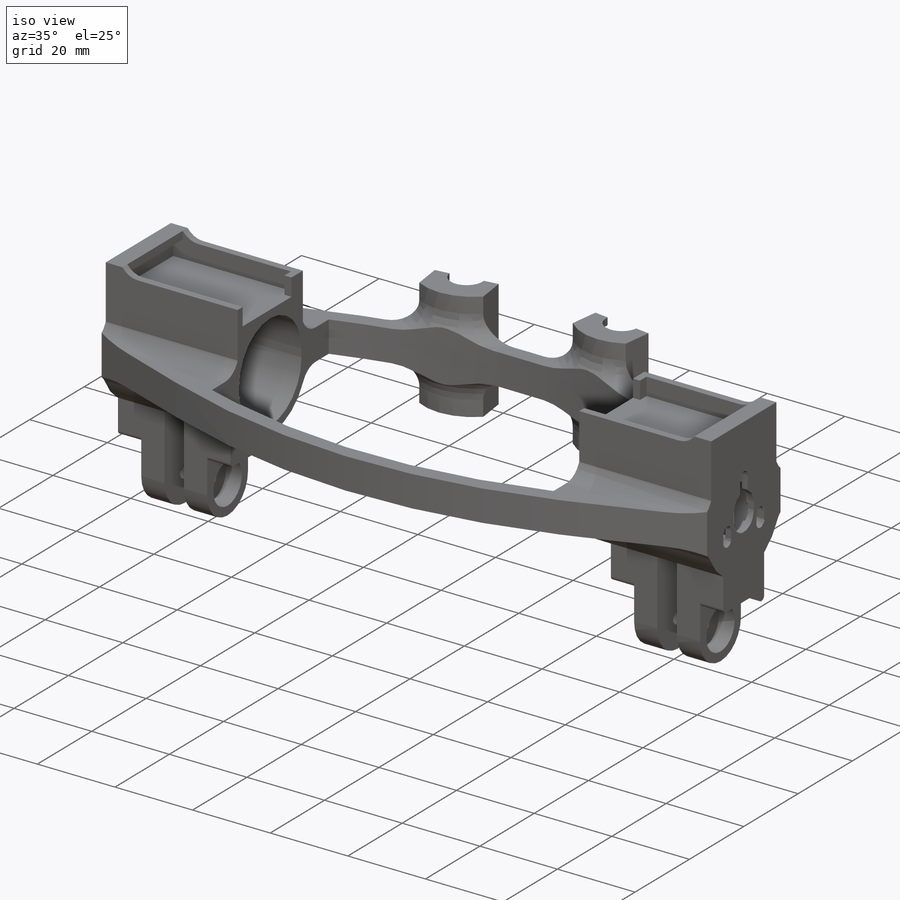
[diagram: iso view]
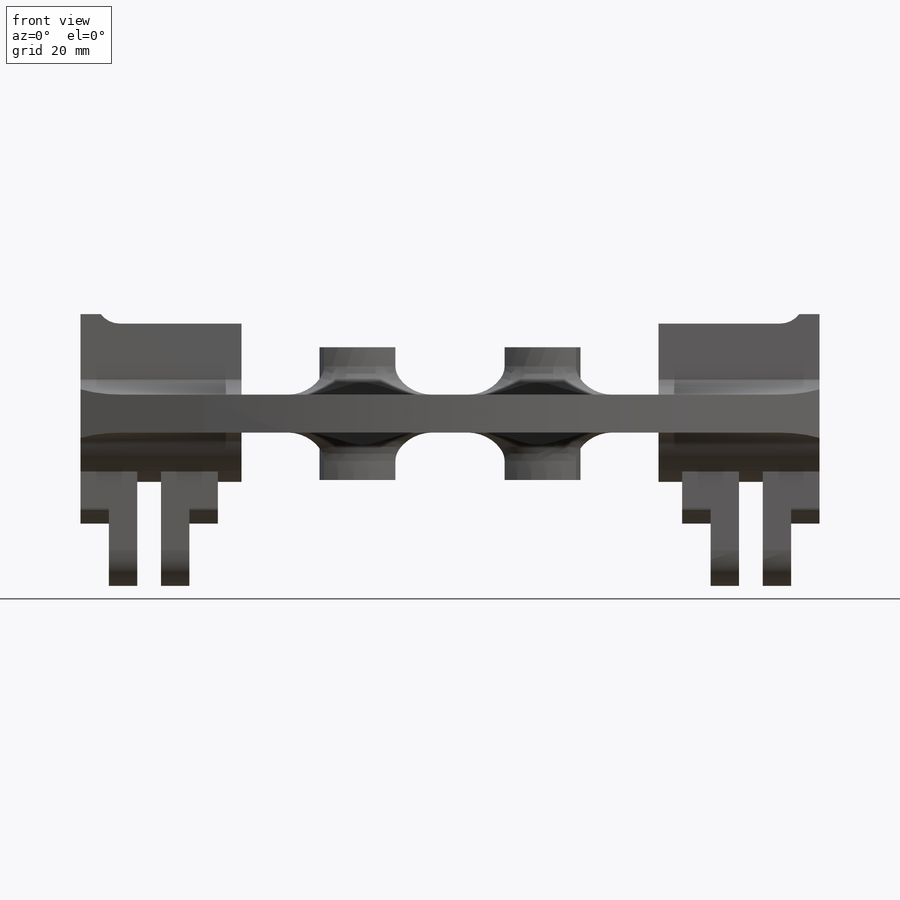
[diagram: front view]
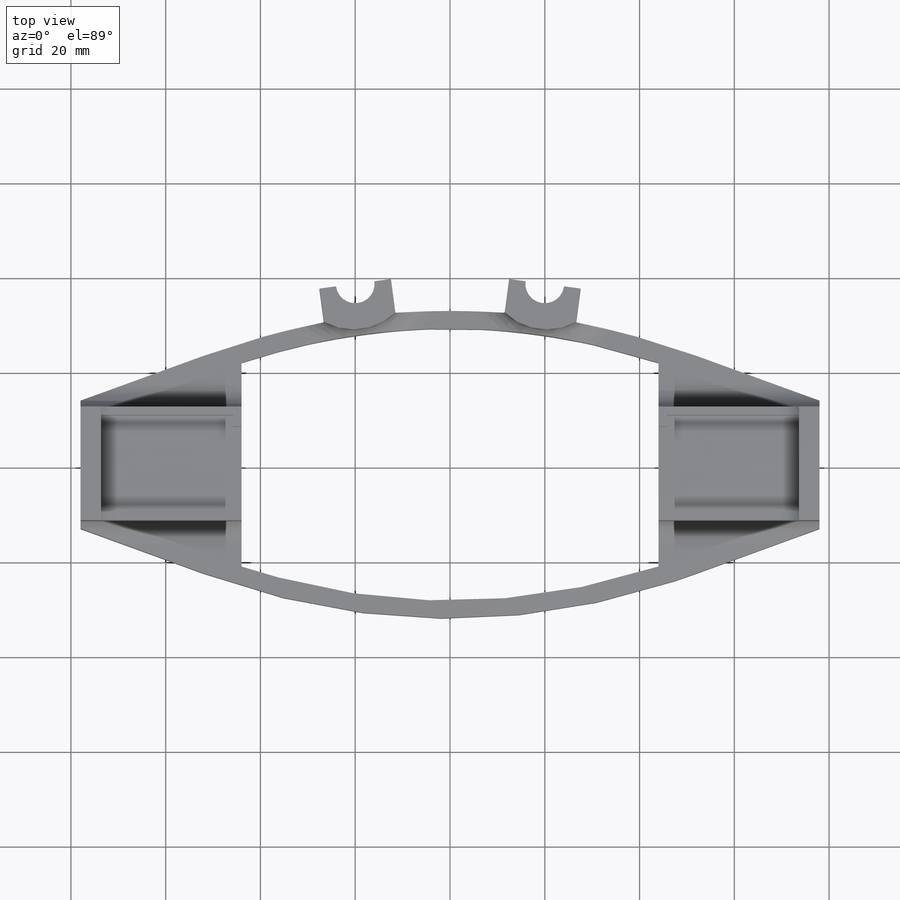
[diagram: top view]
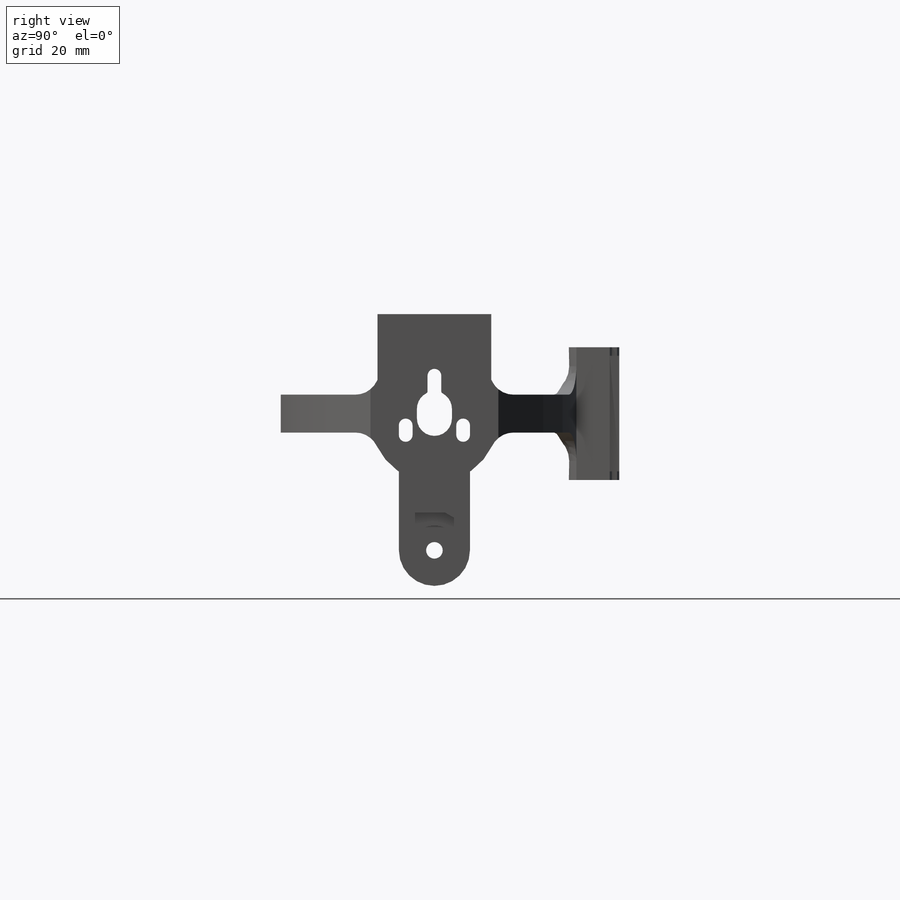
[diagram: right view]
SOLIDWORKS PART (.sldprt)
format: sldprt  version: not decoded by parser v0  size: 941,568 bytes
history: native  units: mm
features: sketch x18, extrude x11, mirror x6, cut_extrude x5, plane x4, fillet x4, material x1, hole x1 (+13 scaffold rows collapsed)
feature tree (63):
  scaffold x13  (default folders/planes/origin — collapsed)
  material  "PLA Black"
  plane  "Plane1"  Offset=75mm
  sketch  "Sketch1"  dims[D1=27.0mm D2=7.4mm D3=2.0mm]
  extrude  "Boss-Extrude1"  Depth=3mm
  sketch  "Sketch8"  dims[D1=5.2mm D2=2.0mm]
  cut_extrude  "Cut-Extrude2"  Depth=1.5mm
  sketch  "Sketch2"  dims[D1=2.0mm]
  extrude  "Boss-Extrude2"  Depth=31mm
  hole  "M2.5 Clearance Hole1"  Diameter=2.9mm Depth=34mm
  sketch  "Sketch4"  dims[D1=7.0mm D2=3.0]
  sketch  "Sketch3"  dims[hole-wizard template sketch: 60 standard entries collapsed; hole parameters kept: c18.Thru Hole Depth=34.0mm]
  sketch  "Sketch9"  dims[D1=2.0mm D2=~1.595958mm]
  cut_extrude  "Cut-Extrude3"  [1 undecoded]
  fillet  "Fillet5"  Radius=0.5mm
  plane  "Plane2"
  sketch  "Sketch5"  dims[c1.D1=6.0mm c1.D2=14.5mm c1.D3=26.5mm c2.D2=17.0mm c2.D3=20.0mm c2.D4=15.0mm c3.D3=6.0mm]
  extrude  "Boss-Extrude3"  Depth=21.861037mm
  sketch  "Sketch6"  dims[D2=3.5mm D1=0.1mm]
  cut_extrude  "Cut-Extrude1"  [1 undecoded]
  sketch  "Sketch7"  dims[c1.D1=8.0mm c1.D4=1.0mm c1.D2=7.5mm c1.D3=~18.76796mm c2.D3=45.0deg c3.D3=~11.945017mm c4.D3=60.0deg c4.D4=7.5mm]
  extrude  "Boss-Extrude4"  Depth=6mm
  plane  "Plane3"
  mirror  "Mirror2"
  sketch  "Sketch10"  dims[D1=10.5mm]
  cut_extrude  "Cut-Extrude4"  Depth=4.1mm
  mirror  "Mirror3"
  mirror  "Mirror9"
  sketch  "Sketch11"  dims[c1.D1=4.0mm c1.D2=8.0mm c1.D3=8.0mm c2.D1=6.0mm]
  extrude  "Boss-Extrude5"  Depth=8mm
  sketch  "Sketch12"  dims[D1=0.0mm]
  extrude  "Boss-Extrude6"  [1 undecoded]
  fillet  "Fillet1"  Radius=5mm
  mirror  "Mirror10"
  sketch  "Sketch13"  dims[D3=15.2mm D1=40.0mm D2=38.0mm]
  cut_extrude  "Cut-Extrude5"  Depth=1mm
  sketch  "Sketch14"  dims[D1=2.0mm]
  extrude  "Boss-Extrude7"  Depth=28mm
  sketch  "Sketch15"  dims[D1=8.2mm]
  extrude  "Boss-Extrude8"  Depth=1.8mm
  mirror  "Mirror11"
  fillet  "Fillet2"  Radius=6mm
  plane  "Plane4"
  sketch  "Sketch16"  dims[c1.D1=24.0mm c1.D2=34.0mm c1.D3=~2.894345mm c2.D1=24.0mm c2.D2=34.0mm c3.D1=12.0mm c3.D2=24.0mm c4.D1=24.0mm]
  extrude  "Boss-Extrude11"  [1 undecoded]
  sketch  "Sketch18"  dims[c1.D1=1.8mm c1.D2=1.8mm c1.D4=2.4mm c2.D1=1.8mm c2.D2=18.0mm c2.D3=0.0mm]
  extrude  "Boss-Extrude12"  Depth=4.5mm
  sketch  "Sketch19"  dims[D1=2.5mm]
  extrude  "Boss-Extrude13"  Depth=2mm
  mirror  "Mirror12"
  fillet  "Fillet3"  Radius=5mm
decode coverage: 35 of 45 modeling features carry decoded parameters
note: ~ marks probable driven/reference dimensions
note: 4 parameter values undecoded
summary: no parameter record found for 4 features
note: suppression state not decoded; provenance and decode notes live in map.json
